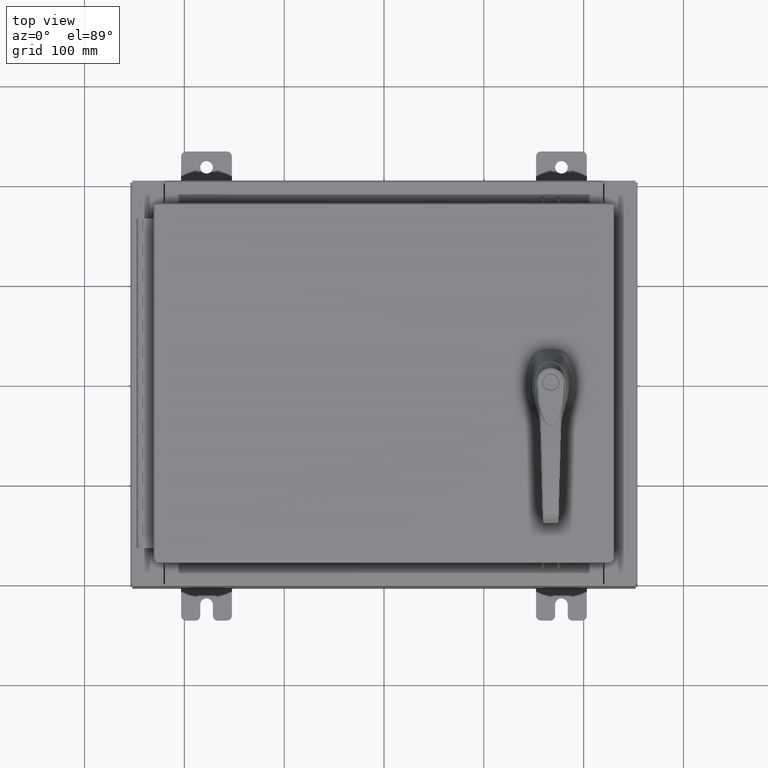
[diagram: clean part render]
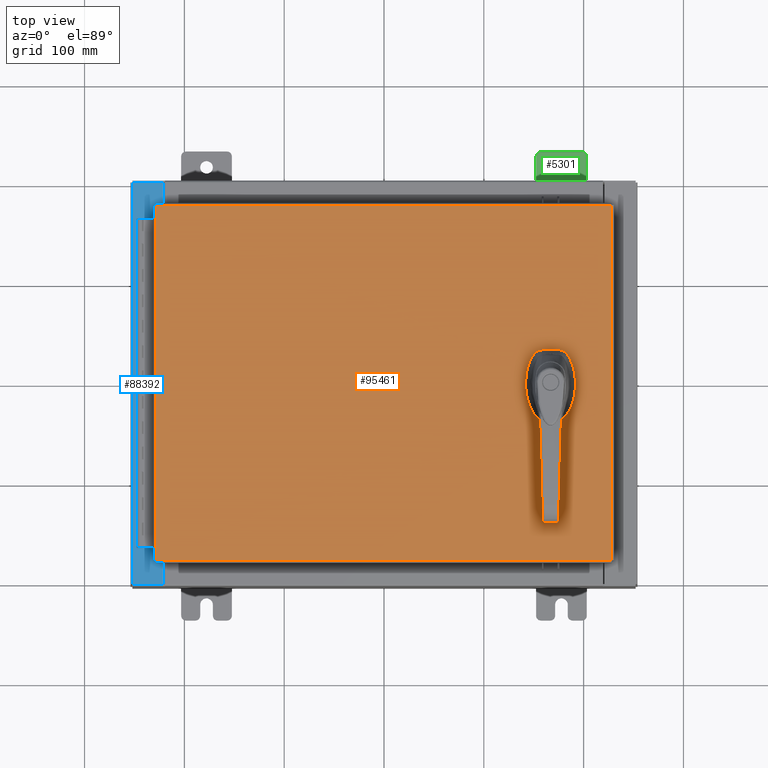
[diagram: same view with three faces highlighted in distinct colors, each labeled with its STEP entity id]
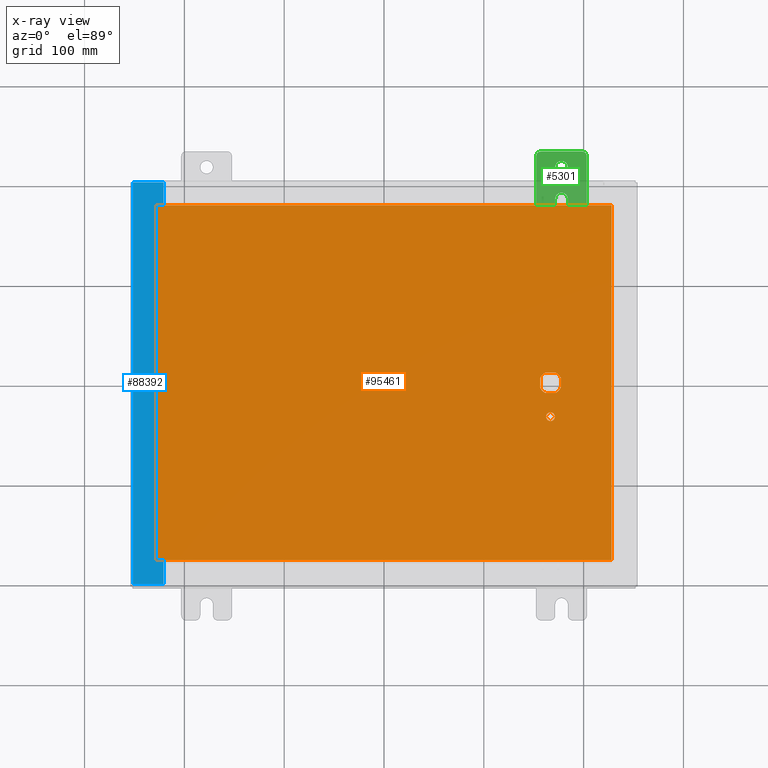
[diagram: x-ray of the same camera — body ghosted, the three highlighted faces saturated]
A machine part, top view with three faces highlighted in distinct colors.
The next image is the same camera in x-ray (body ghosted, the three faces saturated) — at least one of them is partly hidden behind the body in this view.
Their STEP definitions:

[orange] entity #95461 — the highlighted planar face has unit normal (0, 0, -1).
#2 = LINE ( 'NONE', #100643, #88104 ) ;
#191 = DIRECTION ( 'NONE',  ( 1.000000000000000000, 0.0000000000000000000, 0.0000000000000000000 ) ) ;
#542 = ORIENTED_EDGE ( 'NONE', *, *, #30038, .F. ) ;
#806 = DIRECTION ( 'NONE',  ( -0.0000000000000000000, 0.0000000000000000000, 1.000000000000000000 ) ) ;
#1014 = CARTESIAN_POINT ( 'NONE',  ( 8.990300000000001300, 7.006300000000001300, -2.219626494852214000E-016 ) ) ;
#2431 = EDGE_CURVE ( 'NONE', #69930, #96398, #16363, .T. ) ;
#2735 = LINE ( 'NONE', #21249, #41570 ) ;
#2752 = VERTEX_POINT ( 'NONE', #1014 ) ;
#2912 = DIRECTION ( 'NONE',  ( -1.000000000000000000, 0.0000000000000000000, 0.0000000000000000000 ) ) ;
#3387 = PLANE ( 'NONE',  #21133 ) ;
#3622 = CIRCLE ( 'NONE', #30344, 0.4499999999999156900 ) ;
#5414 = CARTESIAN_POINT ( 'NONE',  ( 8.990300000000001300, 7.006300000000001300, -2.219626494852214000E-016 ) ) ;
#6705 = VERTEX_POINT ( 'NONE', #36150 ) ;
#8561 = DIRECTION ( 'NONE',  ( -0.0000000000000000000, 0.0000000000000000000, 1.000000000000000000 ) ) ;
#11859 = EDGE_CURVE ( 'NONE', #51103, #6705, #2, .T. ) ;
#14130 = LINE ( 'NONE', #21793, #58080 ) ;
#14481 = CARTESIAN_POINT ( 'NONE',  ( 6.980999999999925300, 1.904937449034470600E-014, 0.0000000000000000000 ) ) ;
#16363 = LINE ( 'NONE', #14481, #55273 ) ;
#16709 = CARTESIAN_POINT ( 'NONE',  ( 6.577999999999999400, 0.0000000000000000000, 0.0000000000000000000 ) ) ;
#19603 = VERTEX_POINT ( 'NONE', #33985 ) ;
#21133 = AXIS2_PLACEMENT_3D ( 'NONE', #94205, #85875, #61224 ) ;
#21249 = CARTESIAN_POINT ( 'NONE',  ( 0.0000000000000000000, -0.4029999999999252000, 0.0000000000000000000 ) ) ;
#21793 = CARTESIAN_POINT ( 'NONE',  ( -8.990299999999997700, -7.006299999999998600, 3.244069492476312400E-016 ) ) ;
#24849 = EDGE_CURVE ( 'NONE', #69930, #41978, #49864, .T. ) ;
#24915 = DIRECTION ( 'NONE',  ( -0.0000000000000000000, 0.0000000000000000000, 1.000000000000000000 ) ) ;
#25066 = DIRECTION ( 'NONE',  ( 1.000000000000000000, 0.0000000000000000000, 0.0000000000000000000 ) ) ;
#26011 = CARTESIAN_POINT ( 'NONE',  ( 6.778227370756309400, 0.4029999999999252000, 0.0000000000000000000 ) ) ;
#29063 = CARTESIAN_POINT ( 'NONE',  ( -8.990299999999999500, 7.006300000000001300, -1.843997395723377600E-015 ) ) ;
#29467 = CARTESIAN_POINT ( 'NONE',  ( 8.990299999999999500, -7.006299999999998600, -7.683322482180740400E-016 ) ) ;
#30038 = EDGE_CURVE ( 'NONE', #19603, #85254, #2735, .T. ) ;
#30172 = CARTESIAN_POINT ( 'NONE',  ( 6.778227370756309400, -0.4029999999999252000, 0.0000000000000000000 ) ) ;
#30344 = AXIS2_PLACEMENT_3D ( 'NONE', #99367, #49799, #191 ) ;
#32770 = DIRECTION ( 'NONE',  ( -0.0000000000000000000, 0.0000000000000000000, 1.000000000000000000 ) ) ;
#32894 = ORIENTED_EDGE ( 'NONE', *, *, #106846, .F. ) ;
#33159 = CARTESIAN_POINT ( 'NONE',  ( 6.749500000000001200, -1.338000000000000100, 0.0000000000000000000 ) ) ;
#33927 = EDGE_CURVE ( 'NONE', #41978, #48438, #92244, .T. ) ;
#33985 = CARTESIAN_POINT ( 'NONE',  ( 6.377772629243690300, -0.4029999999999252000, 0.0000000000000000000 ) ) ;
#35212 = LINE ( 'NONE', #29467, #54678 ) ;
#36150 = CARTESIAN_POINT ( 'NONE',  ( -8.990299999999997700, -7.006299999999998600, 3.244069492476312400E-016 ) ) ;
#38270 = ORIENTED_EDGE ( 'NONE', *, *, #69676, .F. ) ;
#38355 = DIRECTION ( 'NONE',  ( -1.000000000000000000, -0.0000000000000000000, -0.0000000000000000000 ) ) ;
#38432 = VERTEX_POINT ( 'NONE', #84754 ) ;
#39359 = EDGE_CURVE ( 'NONE', #38432, #19603, #90402, .T. ) ;
#39810 = LINE ( 'NONE', #106989, #72234 ) ;
#40887 = DIRECTION ( 'NONE',  ( 1.000000000000000000, -0.0000000000000000000, -0.0000000000000000000 ) ) ;
#41257 = ORIENTED_EDGE ( 'NONE', *, *, #79515, .F. ) ;
#41570 = VECTOR ( 'NONE', #62453, 39.37007874015748100 ) ;
#41978 = VERTEX_POINT ( 'NONE', #26011 ) ;
#42423 = ORIENTED_EDGE ( 'NONE', *, *, #91362, .T. ) ;
#42758 = DIRECTION ( 'NONE',  ( 0.0000000000000000000, -1.000000000000000000, 0.0000000000000000000 ) ) ;
#43178 = EDGE_CURVE ( 'NONE', #100624, #48748, #95232, .T. ) ;
#44229 = ORIENTED_EDGE ( 'NONE', *, *, #43178, .F. ) ;
#44387 = VERTEX_POINT ( 'NONE', #59145 ) ;
#46112 = VECTOR ( 'NONE', #38355, 39.37007874015748100 ) ;
#47784 = AXIS2_PLACEMENT_3D ( 'NONE', #82334, #32770, #90658 ) ;
#48438 = VERTEX_POINT ( 'NONE', #73902 ) ;
#48748 = VERTEX_POINT ( 'NONE', #33159 ) ;
#49099 = DIRECTION ( 'NONE',  ( 0.0000000000000000000, -1.000000000000000000, 0.0000000000000000000 ) ) ;
#49799 = DIRECTION ( 'NONE',  ( -0.0000000000000000000, 0.0000000000000000000, 1.000000000000000000 ) ) ;
#49864 = CIRCLE ( 'NONE', #47784, 0.4499999999999156900 ) ;
#50405 = CARTESIAN_POINT ( 'NONE',  ( 6.577999999999999400, -1.338000000000000100, 0.0000000000000000000 ) ) ;
#51103 = VERTEX_POINT ( 'NONE', #29063 ) ;
#51787 = EDGE_CURVE ( 'NONE', #2752, #51103, #90051, .T. ) ;
#53919 = AXIS2_PLACEMENT_3D ( 'NONE', #50405, #806, #58659 ) ;
#54678 = VECTOR ( 'NONE', #69262, 39.37007874015748100 ) ;
#55273 = VECTOR ( 'NONE', #80708, 39.37007874015748100 ) ;
#58080 = VECTOR ( 'NONE', #40887, 39.37007874015748100 ) ;
#58117 = CARTESIAN_POINT ( 'NONE',  ( 6.577999999999999400, 0.0000000000000000000, 0.0000000000000000000 ) ) ;
#58659 = DIRECTION ( 'NONE',  ( 1.000000000000000000, 0.0000000000000000000, 0.0000000000000000000 ) ) ;
#59145 = CARTESIAN_POINT ( 'NONE',  ( 6.175000000000073500, 0.2002273707563079800, 0.0000000000000000000 ) ) ;
#60965 = VERTEX_POINT ( 'NONE', #80740 ) ;
#61224 = DIRECTION ( 'NONE',  ( -1.000000000000000000, 0.0000000000000000000, -0.0000000000000000000 ) ) ;
#62453 = DIRECTION ( 'NONE',  ( 1.000000000000000000, 0.0000000000000000000, 0.0000000000000000000 ) ) ;
#63190 = CARTESIAN_POINT ( 'NONE',  ( 6.980999999999925300, 0.2002273707563080300, 0.0000000000000000000 ) ) ;
#64387 = EDGE_CURVE ( 'NONE', #85254, #96398, #96331, .T. ) ;
#66452 = DIRECTION ( 'NONE',  ( 1.000000000000000000, 0.0000000000000000000, 0.0000000000000000000 ) ) ;
#68714 = CIRCLE ( 'NONE', #101305, 0.1715000000000011500 ) ;
#69262 = DIRECTION ( 'NONE',  ( 0.0000000000000000000, 1.000000000000000000, 0.0000000000000000000 ) ) ;
#69676 = EDGE_CURVE ( 'NONE', #48748, #100624, #68714, .T. ) ;
#69930 = VERTEX_POINT ( 'NONE', #63190 ) ;
#70295 = VECTOR ( 'NONE', #2912, 39.37007874015748100 ) ;
#71516 = ORIENTED_EDGE ( 'NONE', *, *, #11859, .T. ) ;
#71989 = FACE_BOUND ( 'NONE', #90448, .T. ) ;
#72234 = VECTOR ( 'NONE', #49099, 39.37007874015748100 ) ;
#72651 = ORIENTED_EDGE ( 'NONE', *, *, #51787, .T. ) ;
#73902 = CARTESIAN_POINT ( 'NONE',  ( 6.377772629243690300, 0.4029999999999252000, 0.0000000000000000000 ) ) ;
#74478 = CARTESIAN_POINT ( 'NONE',  ( 6.577999999999999400, -1.338000000000000100, 0.0000000000000000000 ) ) ;
#74537 = FACE_OUTER_BOUND ( 'NONE', #91580, .T. ) ;
#74629 = DIRECTION ( 'NONE',  ( -0.0000000000000000000, 0.0000000000000000000, 1.000000000000000000 ) ) ;
#76697 = ORIENTED_EDGE ( 'NONE', *, *, #33927, .F. ) ;
#79515 = EDGE_CURVE ( 'NONE', #48438, #44387, #3622, .T. ) ;
#79556 = ORIENTED_EDGE ( 'NONE', *, *, #64387, .F. ) ;
#79890 = EDGE_LOOP ( 'NONE', ( #38270, #44229 ) ) ;
#80708 = DIRECTION ( 'NONE',  ( 2.728745808672812900E-015, -1.000000000000000000, 0.0000000000000000000 ) ) ;
#80740 = CARTESIAN_POINT ( 'NONE',  ( 8.990299999999999500, -7.006299999999998600, -7.683322482180740400E-016 ) ) ;
#81154 = AXIS2_PLACEMENT_3D ( 'NONE', #16709, #74629, #25066 ) ;
#81563 = ORIENTED_EDGE ( 'NONE', *, *, #101382, .T. ) ;
#82334 = CARTESIAN_POINT ( 'NONE',  ( 6.577999999999999400, 0.0000000000000000000, 0.0000000000000000000 ) ) ;
#82785 = DIRECTION ( 'NONE',  ( 1.000000000000000000, 0.0000000000000000000, 0.0000000000000000000 ) ) ;
#84723 = ORIENTED_EDGE ( 'NONE', *, *, #24849, .F. ) ;
#84754 = CARTESIAN_POINT ( 'NONE',  ( 6.175000000000073500, -0.2002273707563079800, 0.0000000000000000000 ) ) ;
#85254 = VERTEX_POINT ( 'NONE', #30172 ) ;
#85406 = CARTESIAN_POINT ( 'NONE',  ( 0.0000000000000000000, 0.4029999999999252000, 0.0000000000000000000 ) ) ;
#85875 = DIRECTION ( 'NONE',  ( 0.0000000000000000000, 0.0000000000000000000, -1.000000000000000000 ) ) ;
#88104 = VECTOR ( 'NONE', #42758, 39.37007874015748100 ) ;
#89285 = ORIENTED_EDGE ( 'NONE', *, *, #2431, .T. ) ;
#90051 = LINE ( 'NONE', #5414, #46112 ) ;
#90402 = CIRCLE ( 'NONE', #103944, 0.4499999999999156900 ) ;
#90448 = EDGE_LOOP ( 'NONE', ( #89285, #79556, #542, #99113, #32894, #41257, #76697, #84723 ) ) ;
#90658 = DIRECTION ( 'NONE',  ( 1.000000000000000000, 0.0000000000000000000, 0.0000000000000000000 ) ) ;
#91362 = EDGE_CURVE ( 'NONE', #6705, #60965, #14130, .T. ) ;
#91580 = EDGE_LOOP ( 'NONE', ( #42423, #81563, #72651, #71516 ) ) ;
#92244 = LINE ( 'NONE', #85406, #70295 ) ;
#93966 = FACE_BOUND ( 'NONE', #79890, .T. ) ;
#94205 = CARTESIAN_POINT ( 'NONE',  ( 0.0000000000000000000, 0.0000000000000000000, 0.0000000000000000000 ) ) ;
#95232 = CIRCLE ( 'NONE', #53919, 0.1715000000000011500 ) ;
#95461 = ADVANCED_FACE ( 'NONE', ( #93966, #74537, #71989 ), #3387, .F. ) ;
#96331 = CIRCLE ( 'NONE', #81154, 0.4499999999999156900 ) ;
#96398 = VERTEX_POINT ( 'NONE', #107052 ) ;
#97150 = CARTESIAN_POINT ( 'NONE',  ( 6.406499999999998500, -1.338000000000000100, 0.0000000000000000000 ) ) ;
#99113 = ORIENTED_EDGE ( 'NONE', *, *, #39359, .F. ) ;
#99367 = CARTESIAN_POINT ( 'NONE',  ( 6.577999999999999400, 0.0000000000000000000, 0.0000000000000000000 ) ) ;
#100624 = VERTEX_POINT ( 'NONE', #97150 ) ;
#100643 = CARTESIAN_POINT ( 'NONE',  ( -8.990299999999999500, 7.006300000000001300, -1.843997395723377600E-015 ) ) ;
#101305 = AXIS2_PLACEMENT_3D ( 'NONE', #74478, #24915, #82785 ) ;
#101382 = EDGE_CURVE ( 'NONE', #60965, #2752, #35212, .T. ) ;
#103944 = AXIS2_PLACEMENT_3D ( 'NONE', #58117, #8561, #66452 ) ;
#106846 = EDGE_CURVE ( 'NONE', #44387, #38432, #39810, .T. ) ;
#106989 = CARTESIAN_POINT ( 'NONE',  ( 6.175000000000073500, 0.0000000000000000000, 0.0000000000000000000 ) ) ;
#107052 = CARTESIAN_POINT ( 'NONE',  ( 6.980999999999926200, -0.2002273707563079800, 0.0000000000000000000 ) ) ;

[blue] entity #88392 — the highlighted planar face has unit normal (0, 0, -1).
#134 = ORIENTED_EDGE ( 'NONE', *, *, #69226, .F. ) ;
#381 = ORIENTED_EDGE ( 'NONE', *, *, #98036, .F. ) ;
#2102 = CARTESIAN_POINT ( 'NONE',  ( -8.750050000000019400, -6.631100000000000000, 5.925300000000008900 ) ) ;
#3353 = VERTEX_POINT ( 'NONE', #70906 ) ;
#3554 = DIRECTION ( 'NONE',  ( -1.000000000000000000, 0.0000000000000000000, 0.0000000000000000000 ) ) ;
#4637 = VERTEX_POINT ( 'NONE', #24549 ) ;
#5870 = LINE ( 'NONE', #9609, #64088 ) ;
#6621 = CIRCLE ( 'NONE', #103428, 0.01867499999999949400 ) ;
#8144 = CARTESIAN_POINT ( 'NONE',  ( -9.912300000000021400, 7.925300000000000000, 5.925299999999999100 ) ) ;
#9609 = CARTESIAN_POINT ( 'NONE',  ( -4.252457061909003800E-014, 7.925300000000000000, 5.925300000000070200 ) ) ;
#10404 = DIRECTION ( 'NONE',  ( 1.000000000000000000, 0.0000000000000000000, -2.170286390200002500E-014 ) ) ;
#10928 = LINE ( 'NONE', #2102, #76977 ) ;
#11286 = EDGE_CURVE ( 'NONE', #87814, #91898, #77844, .T. ) ;
#12287 = VECTOR ( 'NONE', #70952, 39.37007874015748100 ) ;
#12786 = ORIENTED_EDGE ( 'NONE', *, *, #43576, .T. ) ;
#13802 = DIRECTION ( 'NONE',  ( -4.695517192964913900E-031, 1.000000000000000000, -3.349200841466645600E-045 ) ) ;
#16611 = CARTESIAN_POINT ( 'NONE',  ( -4.252457061909003800E-014, 0.0000000000000000000, 5.925300000000070200 ) ) ;
#18081 = EDGE_CURVE ( 'NONE', #93288, #34757, #5870, .T. ) ;
#19600 = CARTESIAN_POINT ( 'NONE',  ( -8.750050000000019400, 6.612424999999998200, 5.925300000000008900 ) ) ;
#20120 = EDGE_CURVE ( 'NONE', #3353, #34757, #81429, .T. ) ;
#20496 = DIRECTION ( 'NONE',  ( -7.132762385546378400E-015, -0.0000000000000000000, 1.000000000000000000 ) ) ;
#23649 = VERTEX_POINT ( 'NONE', #99254 ) ;
#24549 = CARTESIAN_POINT ( 'NONE',  ( -8.750050000000019400, 6.593749999999999100, 5.925300000000008000 ) ) ;
#24565 = VERTEX_POINT ( 'NONE', #29982 ) ;
#24970 = DIRECTION ( 'NONE',  ( -1.000000000000000000, 0.0000000000000000000, -7.132762385546378400E-015 ) ) ;
#24991 = ORIENTED_EDGE ( 'NONE', *, *, #25802, .F. ) ;
#25637 = CARTESIAN_POINT ( 'NONE',  ( -8.750050000000019400, -6.593749999999999100, 5.925300000000008000 ) ) ;
#25802 = EDGE_CURVE ( 'NONE', #24565, #55300, #10928, .T. ) ;
#27925 = DIRECTION ( 'NONE',  ( 1.000000000000000000, 0.0000000000000000000, 0.0000000000000000000 ) ) ;
#29265 = AXIS2_PLACEMENT_3D ( 'NONE', #70068, #20496, #78410 ) ;
#29982 = CARTESIAN_POINT ( 'NONE',  ( -8.750050000000019400, -6.631100000000000000, 5.925300000000008000 ) ) ;
#30716 = ORIENTED_EDGE ( 'NONE', *, *, #93149, .T. ) ;
#30910 = EDGE_CURVE ( 'NONE', #100075, #47196, #93272, .T. ) ;
#32552 = EDGE_LOOP ( 'NONE', ( #33693, #37640, #68480, #84117, #30716, #12786, #24991, #93328, #46849, #381, #41834, #134 ) ) ;
#33693 = ORIENTED_EDGE ( 'NONE', *, *, #11286, .F. ) ;
#34757 = VERTEX_POINT ( 'NONE', #8144 ) ;
#37463 = VECTOR ( 'NONE', #106642, 39.37007874015748100 ) ;
#37640 = ORIENTED_EDGE ( 'NONE', *, *, #63592, .T. ) ;
#37666 = CARTESIAN_POINT ( 'NONE',  ( -8.712700000000019400, 6.593750000000000000, 5.925300000000008900 ) ) ;
#41254 = CIRCLE ( 'NONE', #29265, 0.01867499999999949400 ) ;
#41834 = ORIENTED_EDGE ( 'NONE', *, *, #47496, .F. ) ;
#43576 = EDGE_CURVE ( 'NONE', #104424, #55300, #101653, .T. ) ;
#46782 = CARTESIAN_POINT ( 'NONE',  ( -4.252457061909003800E-014, -7.925300000000000000, 5.925300000000070200 ) ) ;
#46849 = ORIENTED_EDGE ( 'NONE', *, *, #30910, .F. ) ;
#47196 = VERTEX_POINT ( 'NONE', #25637 ) ;
#47496 = EDGE_CURVE ( 'NONE', #4637, #23649, #97521, .T. ) ;
#51475 = VECTOR ( 'NONE', #96338, 39.37007874015748100 ) ;
#53588 = CARTESIAN_POINT ( 'NONE',  ( -8.699700000000019500, -6.631100000000000000, 5.925300000000008000 ) ) ;
#55300 = VERTEX_POINT ( 'NONE', #53588 ) ;
#55681 = AXIS2_PLACEMENT_3D ( 'NONE', #16611, #74522, #24970 ) ;
#56287 = LINE ( 'NONE', #37666, #12287 ) ;
#56679 = CARTESIAN_POINT ( 'NONE',  ( -8.712700000000019400, -6.593750000000000000, 5.925300000000008900 ) ) ;
#59154 = DIRECTION ( 'NONE',  ( -1.000000000000000000, -6.146651423996189400E-032, -7.132762385546378400E-015 ) ) ;
#62127 = CARTESIAN_POINT ( 'NONE',  ( -8.750050000000019400, 6.593749999999999100, 5.925300000000008900 ) ) ;
#62709 = CARTESIAN_POINT ( 'NONE',  ( -8.699700000000019500, -7.925300000000000000, 5.925300000000008000 ) ) ;
#63592 = EDGE_CURVE ( 'NONE', #87814, #93288, #71840, .T. ) ;
#64088 = VECTOR ( 'NONE', #59154, 39.37007874015748100 ) ;
#64626 = CARTESIAN_POINT ( 'NONE',  ( -8.750050000000019400, 6.631099999999998200, 5.925300000000008000 ) ) ;
#67650 = CARTESIAN_POINT ( 'NONE',  ( -8.699700000000019500, 7.925300000000000000, 5.925300000000008000 ) ) ;
#68480 = ORIENTED_EDGE ( 'NONE', *, *, #18081, .T. ) ;
#69226 = EDGE_CURVE ( 'NONE', #91898, #4637, #6621, .T. ) ;
#70068 = CARTESIAN_POINT ( 'NONE',  ( -8.750050000000019400, -6.612425000000000000, 5.925300000000008900 ) ) ;
#70906 = CARTESIAN_POINT ( 'NONE',  ( -9.912300000000021400, -7.925300000000000000, 5.925299999999999100 ) ) ;
#70952 = DIRECTION ( 'NONE',  ( -0.0000000000000000000, -1.000000000000000000, -0.0000000000000000000 ) ) ;
#71840 = LINE ( 'NONE', #78866, #91168 ) ;
#74522 = DIRECTION ( 'NONE',  ( 7.132762385546378400E-015, 0.0000000000000000000, -1.000000000000000000 ) ) ;
#75194 = VECTOR ( 'NONE', #103333, 39.37007874015748100 ) ;
#75468 = VECTOR ( 'NONE', #95455, 39.37007874015748100 ) ;
#76977 = VECTOR ( 'NONE', #10404, 39.37007874015748100 ) ;
#77500 = DIRECTION ( 'NONE',  ( -7.132762385546378400E-015, -0.0000000000000000000, 1.000000000000000000 ) ) ;
#77844 = LINE ( 'NONE', #86657, #75194 ) ;
#78410 = DIRECTION ( 'NONE',  ( 1.000000000000000000, 0.0000000000000000000, 0.0000000000000000000 ) ) ;
#78866 = CARTESIAN_POINT ( 'NONE',  ( -8.699700000000019500, -4.084959092363675600E-030, 5.925300000000008000 ) ) ;
#79683 = VECTOR ( 'NONE', #13802, 39.37007874015748100 ) ;
#81429 = LINE ( 'NONE', #89977, #37463 ) ;
#82490 = PLANE ( 'NONE',  #55681 ) ;
#84117 = ORIENTED_EDGE ( 'NONE', *, *, #20120, .F. ) ;
#86657 = CARTESIAN_POINT ( 'NONE',  ( -8.699700000000019500, 6.631100000000000000, 5.925300000000008000 ) ) ;
#87814 = VERTEX_POINT ( 'NONE', #102965 ) ;
#88392 = ADVANCED_FACE ( 'NONE', ( #106431 ), #82490, .F. ) ;
#89977 = CARTESIAN_POINT ( 'NONE',  ( -9.912300000000019700, 7.925300000000000000, 5.925299999999999100 ) ) ;
#90666 = VECTOR ( 'NONE', #3554, 39.37007874015748100 ) ;
#91168 = VECTOR ( 'NONE', #103833, 39.37007874015748100 ) ;
#91898 = VERTEX_POINT ( 'NONE', #64626 ) ;
#93149 = EDGE_CURVE ( 'NONE', #3353, #104424, #98125, .T. ) ;
#93272 = LINE ( 'NONE', #102715, #90666 ) ;
#93288 = VERTEX_POINT ( 'NONE', #67650 ) ;
#93328 = ORIENTED_EDGE ( 'NONE', *, *, #105210, .F. ) ;
#95455 = DIRECTION ( 'NONE',  ( 1.000000000000000000, 0.0000000000000000000, 0.0000000000000000000 ) ) ;
#96323 = CARTESIAN_POINT ( 'NONE',  ( -8.699700000000019500, -4.084959092363675600E-030, 5.925300000000008000 ) ) ;
#96338 = DIRECTION ( 'NONE',  ( 1.000000000000000000, 8.758115402030108600E-047, 7.132762385546378400E-015 ) ) ;
#97521 = LINE ( 'NONE', #62127, #75468 ) ;
#98036 = EDGE_CURVE ( 'NONE', #23649, #100075, #56287, .T. ) ;
#98125 = LINE ( 'NONE', #46782, #51475 ) ;
#99254 = CARTESIAN_POINT ( 'NONE',  ( -8.712700000000019400, 6.593749999999999100, 5.925300000000008900 ) ) ;
#100075 = VERTEX_POINT ( 'NONE', #56679 ) ;
#101653 = LINE ( 'NONE', #96323, #79683 ) ;
#102715 = CARTESIAN_POINT ( 'NONE',  ( -8.712700000000019400, -6.593750000000000000, 5.925300000000008900 ) ) ;
#102965 = CARTESIAN_POINT ( 'NONE',  ( -8.699700000000019500, 6.631100000000000000, 5.925300000000008000 ) ) ;
#103333 = DIRECTION ( 'NONE',  ( -1.000000000000000000, -2.170286390200002500E-014, 2.170286390200002500E-014 ) ) ;
#103428 = AXIS2_PLACEMENT_3D ( 'NONE', #19600, #77500, #27925 ) ;
#103833 = DIRECTION ( 'NONE',  ( -4.695517192964913900E-031, 1.000000000000000000, -3.349200841466645600E-045 ) ) ;
#104424 = VERTEX_POINT ( 'NONE', #62709 ) ;
#105210 = EDGE_CURVE ( 'NONE', #47196, #24565, #41254, .T. ) ;
#106431 = FACE_OUTER_BOUND ( 'NONE', #32552, .T. ) ;
#106642 = DIRECTION ( 'NONE',  ( 1.378798528088155100E-016, 1.000000000000000000, 9.834642278393904800E-031 ) ) ;

[green] entity #5301 — the highlighted planar face has unit normal (0, 0, 1).
#18 = DIRECTION ( 'NONE',  ( 0.0000000000000000000, -1.639108796198553600E-015, -1.000000000000000000 ) ) ;
#1019 = VERTEX_POINT ( 'NONE', #55452 ) ;
#1695 = CARTESIAN_POINT ( 'NONE',  ( 0.0000000000000000000, -1.250000000000003100, 0.4400000000000020000 ) ) ;
#1840 = CIRCLE ( 'NONE', #70138, 0.1900000000000011100 ) ;
#2363 = DIRECTION ( 'NONE',  ( -5.163192708025533800E-017, 0.0000000000000000000, -1.000000000000000000 ) ) ;
#2930 = AXIS2_PLACEMENT_3D ( 'NONE', #21105, #46108, #103988 ) ;
#4850 = AXIS2_PLACEMENT_3D ( 'NONE', #86561, #36998, #94880 ) ;
#5038 = CARTESIAN_POINT ( 'NONE',  ( 0.0000000000000000000, -1.060000000000001200, 0.9999999999999988900 ) ) ;
#5301 = ADVANCED_FACE ( 'NONE', ( #44570, #47180 ), #37756, .T. ) ;
#5396 = EDGE_CURVE ( 'NONE', #24444, #72824, #80793, .T. ) ;
#5618 = CARTESIAN_POINT ( 'NONE',  ( 4.780733988912460100E-016, -0.6249999999999993300, 5.858939755051854500E-017 ) ) ;
#6976 = EDGE_LOOP ( 'NONE', ( #42887, #32296 ) ) ;
#7978 = DIRECTION ( 'NONE',  ( 0.0000000000000000000, 0.0000000000000000000, -1.000000000000000000 ) ) ;
#8266 = DIRECTION ( 'NONE',  ( 0.0000000000000000000, 0.0000000000000000000, -1.000000000000000000 ) ) ;
#9007 = ORIENTED_EDGE ( 'NONE', *, *, #32238, .T. ) ;
#12133 = EDGE_CURVE ( 'NONE', #39368, #12339, #72547, .T. ) ;
#12339 = VERTEX_POINT ( 'NONE', #75960 ) ;
#13775 = VERTEX_POINT ( 'NONE', #35139 ) ;
#13810 = CARTESIAN_POINT ( 'NONE',  ( 0.0000000000000000000, -1.060000000000001600, 0.8099999999999978300 ) ) ;
#13937 = DIRECTION ( 'NONE',  ( -6.523827964459551700E-016, -1.000000000000000000, 0.0000000000000000000 ) ) ;
#14186 = CARTESIAN_POINT ( 'NONE',  ( 4.039428427013647300E-016, 0.6249999999999992200, -9.783840404509077400E-018 ) ) ;
#14914 = DIRECTION ( 'NONE',  ( 6.556435184794182400E-016, 1.000000000000000000, 0.0000000000000000000 ) ) ;
#16058 = VECTOR ( 'NONE', #18, 39.37007874015748100 ) ;
#16728 = CIRCLE ( 'NONE', #95999, 0.1900000000000011100 ) ;
#21105 = CARTESIAN_POINT ( 'NONE',  ( 0.0000000000000000000, 0.0000000000000000000, 0.0000000000000000000 ) ) ;
#21632 = LINE ( 'NONE', #71684, #24190 ) ;
#22153 = DIRECTION ( 'NONE',  ( 0.0000000000000000000, 0.0000000000000000000, -1.000000000000000000 ) ) ;
#22533 = DIRECTION ( 'NONE',  ( -5.163192708025533800E-017, 0.0000000000000000000, -1.000000000000000000 ) ) ;
#22887 = CIRCLE ( 'NONE', #47464, 0.2499999999999999200 ) ;
#24183 = CIRCLE ( 'NONE', #4850, 0.1900000000000011100 ) ;
#24190 = VECTOR ( 'NONE', #47074, 39.37007874015748100 ) ;
#24444 = VERTEX_POINT ( 'NONE', #95114 ) ;
#29987 = ORIENTED_EDGE ( 'NONE', *, *, #78376, .T. ) ;
#30010 = VERTEX_POINT ( 'NONE', #1695 ) ;
#30384 = EDGE_CURVE ( 'NONE', #85293, #13775, #72657, .T. ) ;
#30513 = VERTEX_POINT ( 'NONE', #79672 ) ;
#31606 = VERTEX_POINT ( 'NONE', #55492 ) ;
#32238 = EDGE_CURVE ( 'NONE', #35415, #30513, #16728, .T. ) ;
#32296 = ORIENTED_EDGE ( 'NONE', *, *, #94705, .F. ) ;
#34468 = AXIS2_PLACEMENT_3D ( 'NONE', #13810, #71734, #22153 ) ;
#35139 = CARTESIAN_POINT ( 'NONE',  ( 1.928684683526964400E-016, -1.060000000000003400, -0.2499999999999994400 ) ) ;
#35163 = EDGE_LOOP ( 'NONE', ( #60487, #64033, #84474, #35963, #39990, #29987, #66770, #58531, #41028, #9007, #82497, #96339, #104051, #44903 ) ) ;
#35415 = VERTEX_POINT ( 'NONE', #55550 ) ;
#35935 = CIRCLE ( 'NONE', #103741, 0.1900000000000011400 ) ;
#35963 = ORIENTED_EDGE ( 'NONE', *, *, #93528, .T. ) ;
#36998 = DIRECTION ( 'NONE',  ( 1.000000000000000000, 0.0000000000000000000, -0.0000000000000000000 ) ) ;
#37756 = PLANE ( 'NONE',  #2930 ) ;
#39368 = VERTEX_POINT ( 'NONE', #5038 ) ;
#39990 = ORIENTED_EDGE ( 'NONE', *, *, #5396, .T. ) ;
#41028 = ORIENTED_EDGE ( 'NONE', *, *, #103632, .T. ) ;
#41459 = EDGE_CURVE ( 'NONE', #66645, #31606, #24183, .T. ) ;
#42887 = ORIENTED_EDGE ( 'NONE', *, *, #106955, .F. ) ;
#42916 = VERTEX_POINT ( 'NONE', #66292 ) ;
#44247 = DIRECTION ( 'NONE',  ( 0.0000000000000000000, 1.639108796198553600E-015, 1.000000000000000000 ) ) ;
#44570 = FACE_BOUND ( 'NONE', #6976, .T. ) ;
#44903 = ORIENTED_EDGE ( 'NONE', *, *, #41459, .T. ) ;
#45352 = DIRECTION ( 'NONE',  ( 1.000000000000000000, 0.0000000000000000000, -0.0000000000000000000 ) ) ;
#45629 = CARTESIAN_POINT ( 'NONE',  ( 0.0000000000000000000, -1.060000000000002100, 0.4400000000000016700 ) ) ;
#46108 = DIRECTION ( 'NONE',  ( 1.000000000000000000, 0.0000000000000000000, -0.0000000000000000000 ) ) ;
#47074 = DIRECTION ( 'NONE',  ( 0.0000000000000000000, 1.000000000000000000, -1.639108796198558100E-015 ) ) ;
#47180 = FACE_OUTER_BOUND ( 'NONE', #35163, .T. ) ;
#47464 = AXIS2_PLACEMENT_3D ( 'NONE', #14186, #72107, #22533 ) ;
#47920 = VECTOR ( 'NONE', #73189, 39.37007874015748100 ) ;
#49614 = CARTESIAN_POINT ( 'NONE',  ( 0.0000000000000000000, -1.250000000000002200, 0.9999999999999992200 ) ) ;
#51194 = VERTEX_POINT ( 'NONE', #80067 ) ;
#51938 = DIRECTION ( 'NONE',  ( 1.000000000000000000, -0.0000000000000000000, -5.163192708025532000E-017 ) ) ;
#52947 = CIRCLE ( 'NONE', #80859, 0.2499999999999999200 ) ;
#53624 = DIRECTION ( 'NONE',  ( 0.0000000000000000000, -1.000000000000000000, 1.639108796198558100E-015 ) ) ;
#53943 = DIRECTION ( 'NONE',  ( 0.0000000000000000000, 0.0000000000000000000, -1.000000000000000000 ) ) ;
#54003 = CARTESIAN_POINT ( 'NONE',  ( 4.780733988912460100E-016, -0.6249999999999993300, -0.2499999999999993900 ) ) ;
#54447 = VECTOR ( 'NONE', #53624, 39.37007874015748100 ) ;
#55452 = CARTESIAN_POINT ( 'NONE',  ( 0.0000000000000000000, 1.249999999999994700, -0.8100000000000092700 ) ) ;
#55492 = CARTESIAN_POINT ( 'NONE',  ( 0.0000000000000000000, 1.059999999999996500, 0.9999999999999953400 ) ) ;
#55550 = CARTESIAN_POINT ( 'NONE',  ( 0.0000000000000000000, -1.250000000000005300, -0.8100000000000047200 ) ) ;
#57536 = DIRECTION ( 'NONE',  ( 1.000000000000000000, 0.0000000000000000000, -0.0000000000000000000 ) ) ;
#57827 = DIRECTION ( 'NONE',  ( 1.000000000000000000, 0.0000000000000000000, -0.0000000000000000000 ) ) ;
#58322 = VECTOR ( 'NONE', #86898, 39.37007874015748100 ) ;
#58531 = ORIENTED_EDGE ( 'NONE', *, *, #85502, .T. ) ;
#58691 = VECTOR ( 'NONE', #14914, 39.37007874015748100 ) ;
#59689 = CARTESIAN_POINT ( 'NONE',  ( 0.0000000000000000000, 1.249999999999997600, 0.9999999999999951200 ) ) ;
#60487 = ORIENTED_EDGE ( 'NONE', *, *, #89957, .T. ) ;
#60693 = CIRCLE ( 'NONE', #73115, 0.1900000000000011100 ) ;
#61947 = CARTESIAN_POINT ( 'NONE',  ( 0.0000000000000000000, -0.6249999999999992200, 0.2500000000000005000 ) ) ;
#63394 = CARTESIAN_POINT ( 'NONE',  ( 4.780733988912460100E-016, -0.6249999999999993300, -0.2499999999999998600 ) ) ;
#63478 = DIRECTION ( 'NONE',  ( -1.000000000000000000, 6.523827964459549700E-016, 5.163192708025532000E-017 ) ) ;
#64033 = ORIENTED_EDGE ( 'NONE', *, *, #12133, .T. ) ;
#64460 = CARTESIAN_POINT ( 'NONE',  ( 6.829619984160658000E-017, -1.250000000000003800, 0.2500000000000005000 ) ) ;
#66292 = CARTESIAN_POINT ( 'NONE',  ( 3.910348609313009100E-016, 0.6249999999999992200, -0.2499999999999999200 ) ) ;
#66645 = VERTEX_POINT ( 'NONE', #72699 ) ;
#66770 = ORIENTED_EDGE ( 'NONE', *, *, #30384, .T. ) ;
#67062 = VERTEX_POINT ( 'NONE', #103031 ) ;
#70138 = AXIS2_PLACEMENT_3D ( 'NONE', #107142, #57536, #7978 ) ;
#71684 = CARTESIAN_POINT ( 'NONE',  ( 0.0000000000000000000, -1.250000000000005600, -1.000000000000006200 ) ) ;
#71734 = DIRECTION ( 'NONE',  ( 1.000000000000000000, 0.0000000000000000000, -0.0000000000000000000 ) ) ;
#72107 = DIRECTION ( 'NONE',  ( 1.000000000000000000, -0.0000000000000000000, -5.163192708025532000E-017 ) ) ;
#72547 = CIRCLE ( 'NONE', #34468, 0.1900000000000011100 ) ;
#72657 = LINE ( 'NONE', #54003, #58322 ) ;
#72699 = CARTESIAN_POINT ( 'NONE',  ( 0.0000000000000000000, 1.249999999999997300, 0.8099999999999935000 ) ) ;
#72824 = VERTEX_POINT ( 'NONE', #61947 ) ;
#73115 = AXIS2_PLACEMENT_3D ( 'NONE', #94892, #45352, #103242 ) ;
#73189 = DIRECTION ( 'NONE',  ( 0.0000000000000000000, -1.639108796198553600E-015, -1.000000000000000000 ) ) ;
#74091 = EDGE_CURVE ( 'NONE', #1019, #66645, #96786, .T. ) ;
#74721 = VECTOR ( 'NONE', #44247, 39.37007874015748100 ) ;
#75960 = CARTESIAN_POINT ( 'NONE',  ( 0.0000000000000000000, -1.250000000000002400, 0.8099999999999980500 ) ) ;
#76414 = LINE ( 'NONE', #59689, #54447 ) ;
#78376 = EDGE_CURVE ( 'NONE', #72824, #85293, #52947, .T. ) ;
#79589 = LINE ( 'NONE', #49614, #16058 ) ;
#79672 = CARTESIAN_POINT ( 'NONE',  ( 0.0000000000000000000, -1.060000000000004500, -1.000000000000006400 ) ) ;
#80067 = CARTESIAN_POINT ( 'NONE',  ( 4.168508244714285900E-016, 0.6249999999999992200, 0.2499999999999999200 ) ) ;
#80793 = LINE ( 'NONE', #64460, #58691 ) ;
#80859 = AXIS2_PLACEMENT_3D ( 'NONE', #5618, #63478, #13937 ) ;
#82497 = ORIENTED_EDGE ( 'NONE', *, *, #82534, .T. ) ;
#82534 = EDGE_CURVE ( 'NONE', #30513, #67062, #21632, .T. ) ;
#84474 = ORIENTED_EDGE ( 'NONE', *, *, #85523, .T. ) ;
#85293 = VERTEX_POINT ( 'NONE', #63394 ) ;
#85502 = EDGE_CURVE ( 'NONE', #13775, #92502, #1840, .T. ) ;
#85523 = EDGE_CURVE ( 'NONE', #12339, #30010, #79589, .T. ) ;
#86561 = CARTESIAN_POINT ( 'NONE',  ( 0.0000000000000000000, 1.059999999999996300, 0.8099999999999938400 ) ) ;
#86898 = DIRECTION ( 'NONE',  ( -6.556435184794182400E-016, -1.000000000000000000, -1.639108796198545600E-016 ) ) ;
#89957 = EDGE_CURVE ( 'NONE', #31606, #39368, #76414, .T. ) ;
#91210 = EDGE_CURVE ( 'NONE', #67062, #1019, #60693, .T. ) ;
#91883 = LINE ( 'NONE', #98148, #47920 ) ;
#92502 = VERTEX_POINT ( 'NONE', #95353 ) ;
#93528 = EDGE_CURVE ( 'NONE', #30010, #24444, #35935, .T. ) ;
#94164 = CARTESIAN_POINT ( 'NONE',  ( 0.0000000000000000000, 1.249999999999994200, -1.000000000000010400 ) ) ;
#94705 = EDGE_CURVE ( 'NONE', #51194, #42916, #22887, .T. ) ;
#94880 = DIRECTION ( 'NONE',  ( 0.0000000000000000000, 0.0000000000000000000, -1.000000000000000000 ) ) ;
#94892 = CARTESIAN_POINT ( 'NONE',  ( 0.0000000000000000000, 1.059999999999993600, -0.8100000000000089400 ) ) ;
#95114 = CARTESIAN_POINT ( 'NONE',  ( 1.928684683526972300E-016, -1.060000000000002100, 0.2500000000000005000 ) ) ;
#95353 = CARTESIAN_POINT ( 'NONE',  ( 0.0000000000000000000, -1.250000000000004700, -0.4400000000000002200 ) ) ;
#95999 = AXIS2_PLACEMENT_3D ( 'NONE', #107435, #57827, #8266 ) ;
#96339 = ORIENTED_EDGE ( 'NONE', *, *, #91210, .T. ) ;
#96786 = LINE ( 'NONE', #94164, #74721 ) ;
#98148 = CARTESIAN_POINT ( 'NONE',  ( 0.0000000000000000000, -1.250000000000002200, 0.9999999999999992200 ) ) ;
#100626 = CIRCLE ( 'NONE', #100681, 0.2499999999999999200 ) ;
#100681 = AXIS2_PLACEMENT_3D ( 'NONE', #101535, #51938, #2363 ) ;
#101535 = CARTESIAN_POINT ( 'NONE',  ( 4.039428427013647300E-016, 0.6249999999999992200, -9.783840404509077400E-018 ) ) ;
#103031 = CARTESIAN_POINT ( 'NONE',  ( 0.0000000000000000000, 1.059999999999993400, -1.000000000000010000 ) ) ;
#103242 = DIRECTION ( 'NONE',  ( 0.0000000000000000000, 0.0000000000000000000, -1.000000000000000000 ) ) ;
#103529 = DIRECTION ( 'NONE',  ( 1.000000000000000000, 0.0000000000000000000, -0.0000000000000000000 ) ) ;
#103632 = EDGE_CURVE ( 'NONE', #92502, #35415, #91883, .T. ) ;
#103741 = AXIS2_PLACEMENT_3D ( 'NONE', #45629, #103529, #53943 ) ;
#103988 = DIRECTION ( 'NONE',  ( -0.0000000000000000000, 0.0000000000000000000, -1.000000000000000000 ) ) ;
#104051 = ORIENTED_EDGE ( 'NONE', *, *, #74091, .T. ) ;
#106955 = EDGE_CURVE ( 'NONE', #42916, #51194, #100626, .T. ) ;
#107142 = CARTESIAN_POINT ( 'NONE',  ( 0.0000000000000000000, -1.060000000000003400, -0.4400000000000005000 ) ) ;
#107435 = CARTESIAN_POINT ( 'NONE',  ( 0.0000000000000000000, -1.060000000000004100, -0.8100000000000050500 ) ) ;